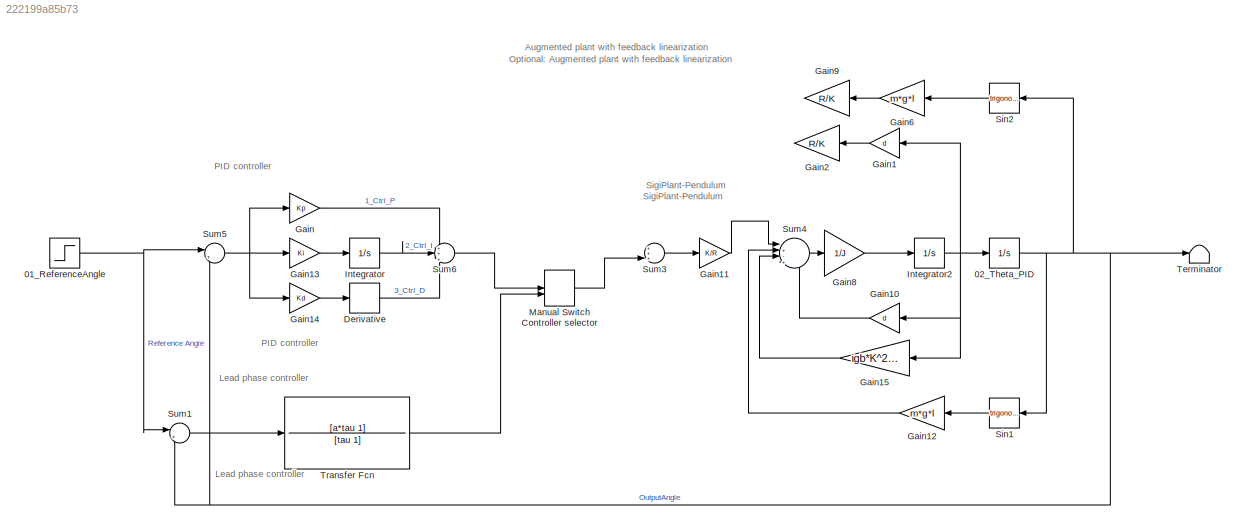
MODEL slx_222199a85b73
KIND model
CONFIG AbsTol = auto
CONFIG EnableMultiTasking = off
CONFIG FixedStep = auto
CONFIG MaxStep = auto
CONFIG MinStep = auto
CONFIG RelTol = 1e-3
CONFIG SampleTimeConstraint = Unconstrained
CONFIG SolverName = VariableStepAuto
CONFIG StartTime = 0.0
CONFIG StopTime = T_sim
BLOCK [Step] 01_ReferenceAngle
  After = yref*1
  SampleTime = 0
  Time = 0
BLOCK [Integrator] 02_Theta_PID
  InitialCondition = init_theta*1
  Ports = [1, 1]
BLOCK [Derivative] Derivative
BLOCK [Gain] Gain
  Gain = Kp
BLOCK [Gain] Gain1
  Gain = d
BLOCK [Gain] Gain10
  Gain = d
BLOCK [Gain] Gain11
  Gain = K/R
BLOCK [Gain] Gain12
  Gain = m*g*l
BLOCK [Gain] Gain13
  Gain = Ki
BLOCK [Gain] Gain14
  Gain = Kd
BLOCK [Gain] Gain15
  Gain = igb*K^2/R
BLOCK [Gain] Gain2
  Gain = R/K
BLOCK [Gain] Gain6
  Gain = m*g*l
BLOCK [Gain] Gain8
  Gain = 1/J
BLOCK [Gain] Gain9
  Gain = R/K
BLOCK [Integrator] Integrator
  Ports = [1, 1]
BLOCK [Integrator] Integrator2
  Ports = [1, 1]
BLOCK [ManualSwitch] Manual Switch Controller selector
  CurrentSetting = 0
BLOCK [Trigonometry] Sin1
  Ports = [1, 1]
BLOCK [Trigonometry] Sin2
  Ports = [1, 1]
BLOCK [Sum] Sum1
  Inputs = |+-
  Ports = [2, 1]
BLOCK [Sum] Sum3
  Inputs = +++|
  Ports = [3, 1]
BLOCK [Sum] Sum4
  Inputs = |+-+-
  Ports = [4, 1]
BLOCK [Sum] Sum5
  Inputs = |+-
  Ports = [2, 1]
BLOCK [Sum] Sum6
  Inputs = ++|+
  Ports = [3, 1]
BLOCK [Terminator] Terminator
BLOCK [TransferFcn] Transfer Fcn
  Denominator = [tau 1]
  Numerator = [a*tau 1]
ANNOTATION (root): Optional: Augmented plant with feedback linearization
ANNOTATION (root): SigiPlant-Pendulum
ANNOTATION (root): Lead phase controller
ANNOTATION (root): PID controller
ANNOTATION (root): Augmented plant with feedback linearization
NET 01_ReferenceAngle:1 -> Sum1:1, Sum5:1
NET 02_Theta_PID:1 -> Sin1:1, Sin2:1, Sum1:2, Sum5:2, Terminator:1
LINE Derivative:1 -> Sum6:3
LINE Gain10:1 -> Sum4:4
LINE Gain11:1 -> Sum4:1
LINE Gain12:1 -> Sum4:2
LINE Gain13:1 -> Integrator:1
LINE Gain14:1 -> Derivative:1
LINE Gain15:1 -> Sum4:3
LINE Gain1:1 -> Gain2:1
LINE Gain6:1 -> Gain9:1
LINE Gain8:1 -> Integrator2:1
LINE Gain:1 -> Sum6:1
NET Integrator2:1 -> 02_Theta_PID:1, Gain10:1, Gain15:1, Gain1:1
LINE Integrator:1 -> Sum6:2
LINE Manual Switch Controller selector:1 -> Sum3:3
LINE Sin1:1 -> Gain12:1
LINE Sin2:1 -> Gain6:1
LINE Sum1:1 -> Transfer Fcn:1
LINE Sum3:1 -> Gain11:1
LINE Sum4:1 -> Gain8:1
NET Sum5:1 -> Gain13:1, Gain14:1, Gain:1
LINE Sum6:1 -> Manual Switch Controller selector:1
LINE Transfer Fcn:1 -> Manual Switch Controller selector:2
note: NET lines group one-source signal fan-out (src -> all destinations, sorted); 1:1 wires keep LINE
